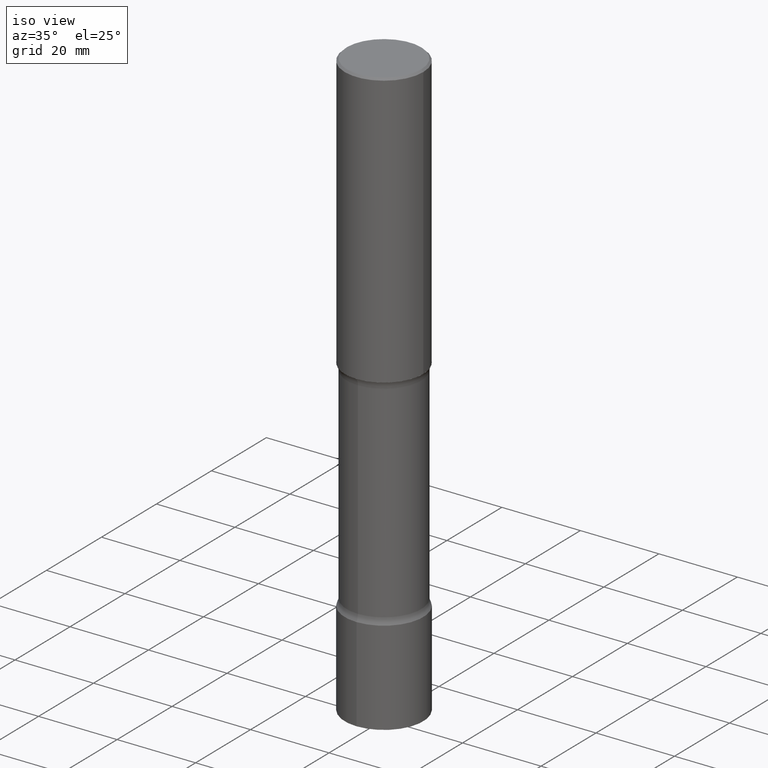
[diagram: clean part render]
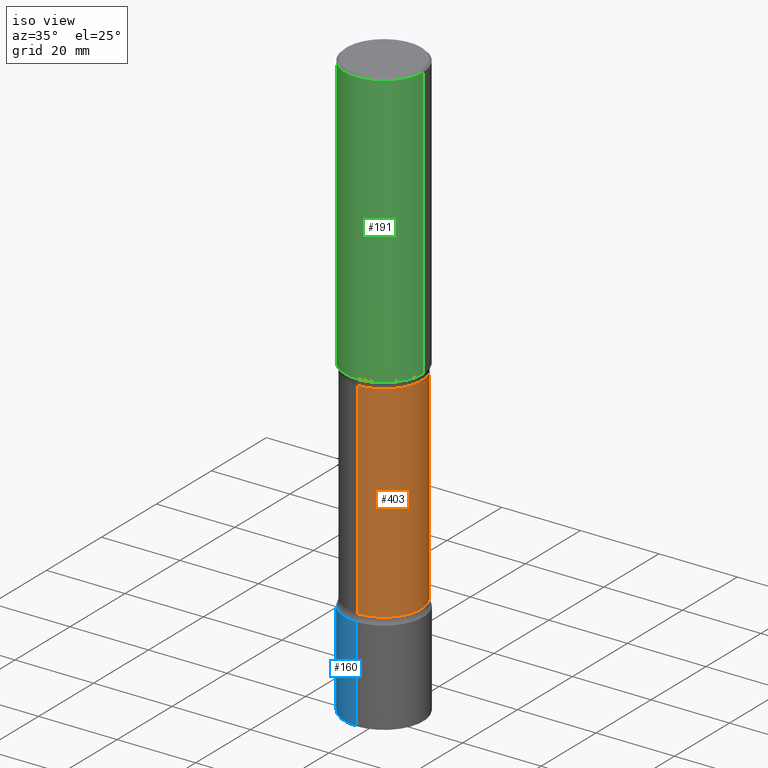
[diagram: same view with three faces highlighted in distinct colors, each labeled with its STEP entity id]
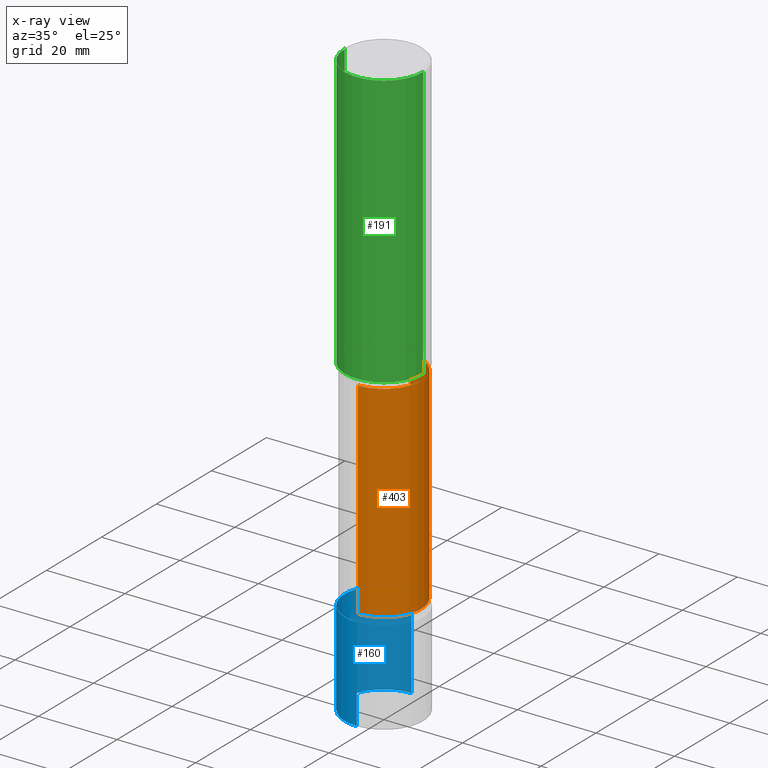
[diagram: x-ray of the same camera — body ghosted, the three highlighted faces saturated]
A machine part, iso view with three faces highlighted in distinct colors.
The next image is the same camera in x-ray (body ghosted, the three faces saturated) — at least one of them is partly hidden behind the body in this view.
Their STEP definitions:

[orange] entity #403 — the highlighted cylindrical surface (partial cylindrical patch) has radius 9.4996 mm, axis along (0, -0, -1).
#3 = CARTESIAN_POINT ( 'NONE',  ( -2.565826251166408954E-15, -0.3740000000000208158, -5.905499999999998195 ) ) ;
#12 = CARTESIAN_POINT ( 'NONE',  ( -2.633402156444537006E-15, -0.3740000000000103242, -2.823256588393414201 ) ) ;
#20 = CIRCLE ( 'NONE', #436, 0.3740000000000004987 ) ;
#22 = CARTESIAN_POINT ( 'NONE',  ( -2.633402156444483363E-15, -0.3740000000000175961, -4.893243411606583493 ) ) ;
#39 = CARTESIAN_POINT ( 'NONE',  ( 6.692757159246300993E-29, -1.016012571056113774E-14, -2.823256588393415090 ) ) ;
#41 = DIRECTION ( 'NONE',  ( 2.545119396642768446E-29, -3.348776021548438389E-15, -1.000000000000000000 ) ) ;
#56 = ORIENTED_EDGE ( 'NONE', *, *, #493, .F. ) ;
#116 = CARTESIAN_POINT ( 'NONE',  ( 2.611628041454786670E-15, 0.3739999999999834568, -4.893243411606585269 ) ) ;
#124 = DIRECTION ( 'NONE',  ( 2.545119396642768446E-29, -3.348776021548438389E-15, -1.000000000000000000 ) ) ;
#129 = ORIENTED_EDGE ( 'NONE', *, *, #417, .F. ) ;
#131 = CARTESIAN_POINT ( 'NONE',  ( 2.611628041454731844E-15, 0.3739999999999900071, -2.823256588393416422 ) ) ;
#151 = CYLINDRICAL_SURFACE ( 'NONE', #360, 0.3740000000000002767 ) ;
#156 = VERTEX_POINT ( 'NONE', #22 ) ;
#159 = ORIENTED_EDGE ( 'NONE', *, *, #273, .T. ) ;
#162 = VERTEX_POINT ( 'NONE', #131 ) ;
#181 = LINE ( 'NONE', #3, #393 ) ;
#229 = DIRECTION ( 'NONE',  ( 2.545119396642768446E-29, -3.348776021548438389E-15, -1.000000000000000000 ) ) ;
#237 = DIRECTION ( 'NONE',  ( 2.545119396642768446E-29, -3.348776021548438389E-15, -1.000000000000000000 ) ) ;
#240 = CARTESIAN_POINT ( 'NONE',  ( 2.611628041454811125E-15, 0.3739999999999797931, -5.905500000000000860 ) ) ;
#245 = VECTOR ( 'NONE', #237, 39.37007874015748143 ) ;
#246 = CARTESIAN_POINT ( 'NONE',  ( 1.196112077380108105E-28, -1.709204794905862240E-14, -4.893243411606584381 ) ) ;
#268 = CARTESIAN_POINT ( 'NONE',  ( 1.453743465130059735E-28, -2.048186853992491890E-14, -5.905499999999999972 ) ) ;
#273 = EDGE_CURVE ( 'NONE', #462, #156, #181, .T. ) ;
#274 = LINE ( 'NONE', #240, #245 ) ;
#281 = EDGE_CURVE ( 'NONE', #162, #462, #338, .T. ) ;
#317 = DIRECTION ( 'NONE',  ( 6.982962677686266711E-15, 1.000000000000000000, -2.921762560068728623E-15 ) ) ;
#322 = EDGE_LOOP ( 'NONE', ( #426, #159, #56, #129 ) ) ;
#338 = CIRCLE ( 'NONE', #467, 0.3740000000000001656 ) ;
#360 = AXIS2_PLACEMENT_3D ( 'NONE', #268, #41, #317 ) ;
#381 = DIRECTION ( 'NONE',  ( 6.982962677686266711E-15, 1.000000000000000000, -2.921762560068729411E-15 ) ) ;
#387 = FACE_OUTER_BOUND ( 'NONE', #322, .T. ) ;
#393 = VECTOR ( 'NONE', #432, 39.37007874015748143 ) ;
#399 = VERTEX_POINT ( 'NONE', #116 ) ;
#403 = ADVANCED_FACE ( 'NONE', ( #387 ), #151, .T. ) ;
#417 = EDGE_CURVE ( 'NONE', #162, #399, #274, .T. ) ;
#426 = ORIENTED_EDGE ( 'NONE', *, *, #281, .T. ) ;
#432 = DIRECTION ( 'NONE',  ( 2.545119396642768446E-29, -3.348776021548438389E-15, -1.000000000000000000 ) ) ;
#436 = AXIS2_PLACEMENT_3D ( 'NONE', #246, #124, #441 ) ;
#441 = DIRECTION ( 'NONE',  ( 6.982962677686266711E-15, 1.000000000000000000, -2.921762560068726650E-15 ) ) ;
#462 = VERTEX_POINT ( 'NONE', #12 ) ;
#467 = AXIS2_PLACEMENT_3D ( 'NONE', #39, #229, #381 ) ;
#493 = EDGE_CURVE ( 'NONE', #399, #156, #20, .T. ) ;

[blue] entity #160 — the highlighted cylindrical surface (partial cylindrical patch) has radius 10 mm, axis along (-0, 0, 1).
#1 = VERTEX_POINT ( 'NONE', #52 ) ;
#6 = DIRECTION ( 'NONE',  ( -2.445783037014241883E-29, 3.491031342410958513E-15, 1.000000000000000000 ) ) ;
#7 = EDGE_CURVE ( 'NONE', #243, #1, #435, .T. ) ;
#10 = DIRECTION ( 'NONE',  ( -6.982962677686265922E-15, -1.000000000000000000, 2.775563112689117089E-15 ) ) ;
#16 = ORIENTED_EDGE ( 'NONE', *, *, #7, .F. ) ;
#23 = LINE ( 'NONE', #261, #498 ) ;
#43 = DIRECTION ( 'NONE',  ( -2.445783037014241883E-29, 3.491031342410958908E-15, 1.000000000000000000 ) ) ;
#52 = CARTESIAN_POINT ( 'NONE',  ( -2.749192406204960943E-15, -0.3937000000000173139, -4.960599999999998566 ) ) ;
#60 = AXIS2_PLACEMENT_3D ( 'NONE', #301, #212, #411 ) ;
#86 = VERTEX_POINT ( 'NONE', #377 ) ;
#90 = CARTESIAN_POINT ( 'NONE',  ( -2.749192406204937672E-15, -0.3937000000000205890, -5.905499999999998195 ) ) ;
#91 = CIRCLE ( 'NONE', #199, 0.3936999999999999389 ) ;
#96 = EDGE_CURVE ( 'NONE', #442, #1, #23, .T. ) ;
#105 = CARTESIAN_POINT ( 'NONE',  ( 2.797406750687658359E-15, 0.3936999999999826194, -4.960600000000000342 ) ) ;
#127 = CARTESIAN_POINT ( 'NONE',  ( 1.213255133341284668E-28, -1.731761007716380225E-14, -4.960599999999999454 ) ) ;
#149 = VECTOR ( 'NONE', #6, 39.37007874015748143 ) ;
#160 = ADVANCED_FACE ( 'NONE', ( #421 ), #369, .T. ) ;
#173 = DIRECTION ( 'NONE',  ( -2.445783037014241883E-29, 3.491031342410958513E-15, 1.000000000000000000 ) ) ;
#185 = ORIENTED_EDGE ( 'NONE', *, *, #96, .T. ) ;
#195 = ORIENTED_EDGE ( 'NONE', *, *, #380, .F. ) ;
#199 = AXIS2_PLACEMENT_3D ( 'NONE', #463, #43, #306 ) ;
#212 = DIRECTION ( 'NONE',  ( -2.445783037014241883E-29, 3.491031342410958908E-15, 1.000000000000000000 ) ) ;
#225 = LINE ( 'NONE', #264, #149 ) ;
#243 = VERTEX_POINT ( 'NONE', #105 ) ;
#251 = AXIS2_PLACEMENT_3D ( 'NONE', #127, #449, #10 ) ;
#261 = CARTESIAN_POINT ( 'NONE',  ( -2.749192406205082428E-15, -0.3936999999999999389, 1.374419039507194384E-15 ) ) ;
#264 = CARTESIAN_POINT ( 'NONE',  ( 2.797406750687513603E-15, 0.3936999999999999389, -1.374419039507194384E-15 ) ) ;
#301 = CARTESIAN_POINT ( 'NONE',  ( 0.000000000000000000, 0.000000000000000000, 0.000000000000000000 ) ) ;
#302 = EDGE_CURVE ( 'NONE', #86, #442, #91, .T. ) ;
#306 = DIRECTION ( 'NONE',  ( -6.982962677686265922E-15, -1.000000000000000000, 2.775563112689117089E-15 ) ) ;
#369 = CYLINDRICAL_SURFACE ( 'NONE', #60, 0.3936999999999999389 ) ;
#377 = CARTESIAN_POINT ( 'NONE',  ( 2.797406750687646526E-15, 0.3936999999999793443, -5.905500000000000860 ) ) ;
#380 = EDGE_CURVE ( 'NONE', #86, #243, #225, .T. ) ;
#411 = DIRECTION ( 'NONE',  ( -6.982962677686265922E-15, -1.000000000000000000, 3.491031342410958908E-15 ) ) ;
#421 = FACE_OUTER_BOUND ( 'NONE', #469, .T. ) ;
#435 = CIRCLE ( 'NONE', #251, 0.3936999999999999389 ) ;
#442 = VERTEX_POINT ( 'NONE', #90 ) ;
#449 = DIRECTION ( 'NONE',  ( -2.445783037014241883E-29, 3.491031342410958908E-15, 1.000000000000000000 ) ) ;
#463 = CARTESIAN_POINT ( 'NONE',  ( 1.444357172508760156E-28, -2.061628559260791379E-14, -5.905499999999999972 ) ) ;
#469 = EDGE_LOOP ( 'NONE', ( #195, #474, #185, #16 ) ) ;
#474 = ORIENTED_EDGE ( 'NONE', *, *, #302, .T. ) ;
#498 = VECTOR ( 'NONE', #173, 39.37007874015748143 ) ;

[green] entity #191 — the highlighted cylindrical surface (partial cylindrical patch) has radius 10 mm, axis along (-0, 0, 1).
#5 = VECTOR ( 'NONE', #365, 39.37007874015748143 ) ;
#13 = VERTEX_POINT ( 'NONE', #408 ) ;
#24 = EDGE_CURVE ( 'NONE', #13, #357, #217, .T. ) ;
#69 = CARTESIAN_POINT ( 'NONE',  ( 0.3936999999999999389, -1.237136582792290603E-14, -2.755900000000000016 ) ) ;
#72 = DIRECTION ( 'NONE',  ( 1.000000000000000000, -6.982962677686266711E-15, 4.876176775795935793E-29 ) ) ;
#75 = VERTEX_POINT ( 'NONE', #137 ) ;
#107 = LINE ( 'NONE', #468, #157 ) ;
#110 = VERTEX_POINT ( 'NONE', #69 ) ;
#122 = DIRECTION ( 'NONE',  ( 1.000000000000000000, -6.982962677686265133E-15, 0.000000000000000000 ) ) ;
#137 = CARTESIAN_POINT ( 'NONE',  ( -0.3937000000000000499, -2.048594773559827874E-15, -2.755900000000000016 ) ) ;
#155 = CARTESIAN_POINT ( 'NONE',  ( 6.739467482965618232E-29, -9.622173421717824390E-15, -2.755900000000000016 ) ) ;
#157 = VECTOR ( 'NONE', #188, 39.37007874015748143 ) ;
#166 = AXIS2_PLACEMENT_3D ( 'NONE', #444, #359, #332 ) ;
#178 = CYLINDRICAL_SURFACE ( 'NONE', #344, 0.3936999999999998279 ) ;
#186 = CARTESIAN_POINT ( 'NONE',  ( 0.3936999999999996613, -2.770807688499512973E-15, -0.02000000000000013572 ) ) ;
#188 = DIRECTION ( 'NONE',  ( -2.445468806185136877E-29, 3.491481338843145188E-15, 1.000000000000000000 ) ) ;
#191 = ADVANCED_FACE ( 'NONE', ( #335 ), #178, .T. ) ;
#203 = ORIENTED_EDGE ( 'NONE', *, *, #373, .T. ) ;
#217 = CIRCLE ( 'NONE', #166, 0.3936999999999996613 ) ;
#271 = ORIENTED_EDGE ( 'NONE', *, *, #423, .T. ) ;
#275 = CIRCLE ( 'NONE', #488, 0.3936999999999999389 ) ;
#307 = EDGE_LOOP ( 'NONE', ( #385, #271, #203, #313 ) ) ;
#313 = ORIENTED_EDGE ( 'NONE', *, *, #24, .F. ) ;
#321 = LINE ( 'NONE', #479, #5 ) ;
#332 = DIRECTION ( 'NONE',  ( 1.000000000000000000, -6.982962677686266711E-15, 0.000000000000000000 ) ) ;
#335 = FACE_OUTER_BOUND ( 'NONE', #307, .T. ) ;
#342 = DIRECTION ( 'NONE',  ( -2.445468806185136597E-29, 3.491481338843145583E-15, 1.000000000000000000 ) ) ;
#344 = AXIS2_PLACEMENT_3D ( 'NONE', #451, #342, #72 ) ;
#357 = VERTEX_POINT ( 'NONE', #186 ) ;
#358 = DIRECTION ( 'NONE',  ( -2.445468806185136597E-29, 3.491481338843145583E-15, 1.000000000000000000 ) ) ;
#359 = DIRECTION ( 'NONE',  ( -2.445468806185136597E-29, 3.491481338843145583E-15, 1.000000000000000000 ) ) ;
#365 = DIRECTION ( 'NONE',  ( -2.445468806185136877E-29, 3.491481338843145188E-15, 1.000000000000000000 ) ) ;
#373 = EDGE_CURVE ( 'NONE', #110, #357, #107, .T. ) ;
#385 = ORIENTED_EDGE ( 'NONE', *, *, #425, .F. ) ;
#408 = CARTESIAN_POINT ( 'NONE',  ( -0.3936999999999996613, 2.679362779428217552E-15, -0.02000000000000013572 ) ) ;
#423 = EDGE_CURVE ( 'NONE', #75, #110, #275, .T. ) ;
#425 = EDGE_CURVE ( 'NONE', #75, #13, #321, .T. ) ;
#444 = CARTESIAN_POINT ( 'NONE',  ( 4.890937612370306439E-31, -6.982962677686338448E-17, -0.02000000000000013572 ) ) ;
#451 = CARTESIAN_POINT ( 'NONE',  ( 0.000000000000000000, 0.000000000000000000, 0.000000000000000000 ) ) ;
#468 = CARTESIAN_POINT ( 'NONE',  ( 0.3936999999999998279, -2.749192406205082033E-15, 1.919750796630859051E-29 ) ) ;
#479 = CARTESIAN_POINT ( 'NONE',  ( -0.3936999999999998279, 2.797406750687513209E-15, -1.936584745033355614E-29 ) ) ;
#488 = AXIS2_PLACEMENT_3D ( 'NONE', #155, #358, #122 ) ;